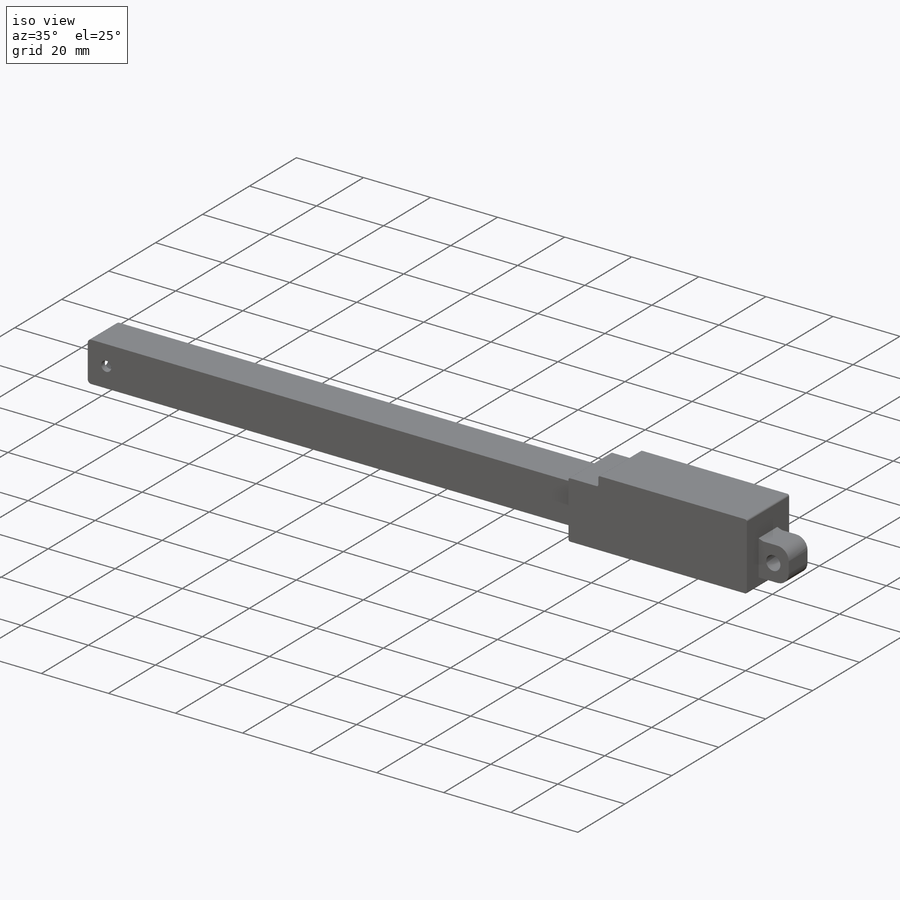
[diagram: iso view]
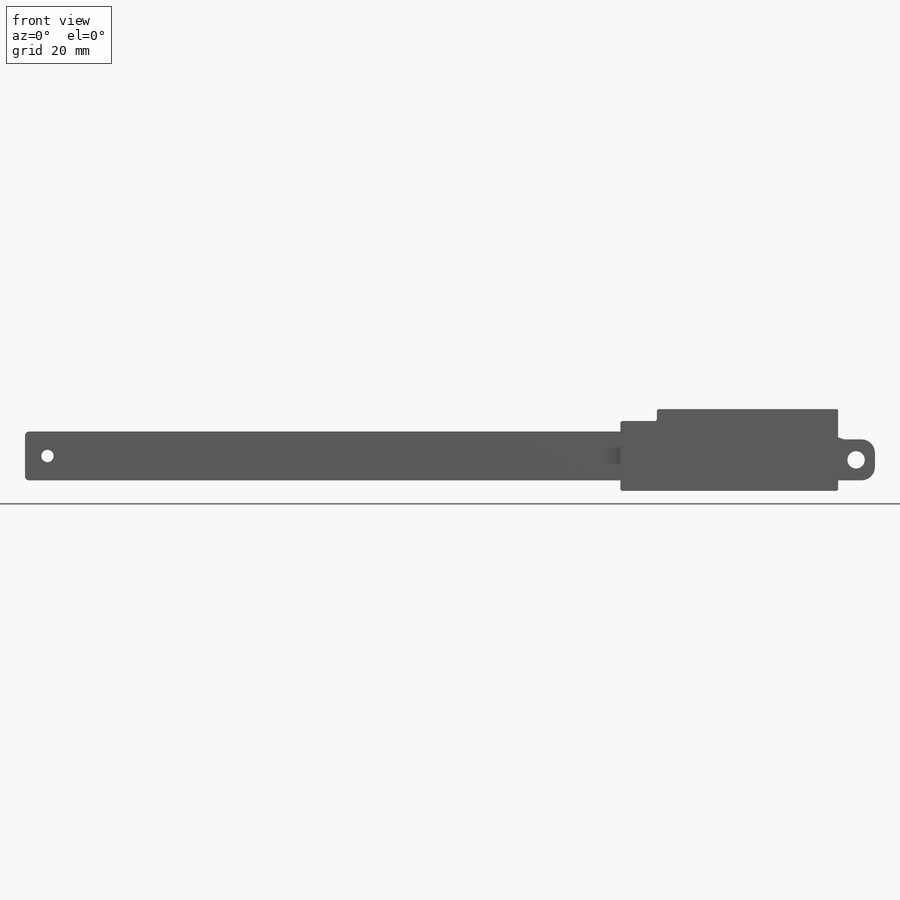
[diagram: front view]
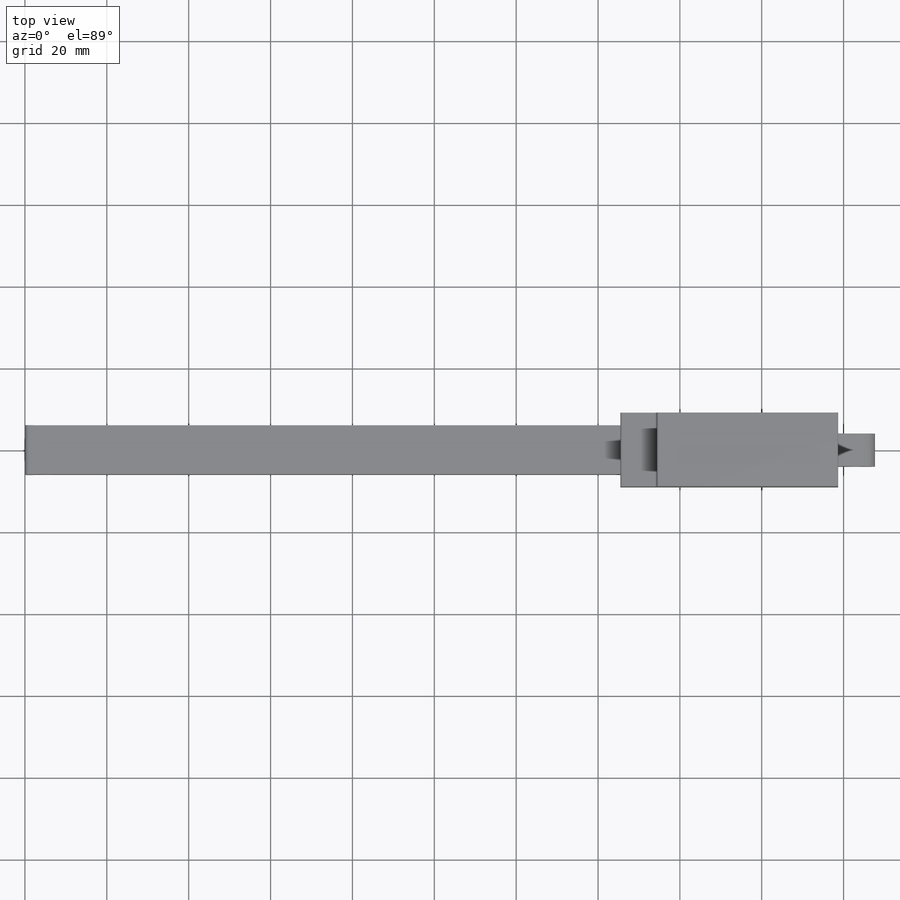
[diagram: top view]
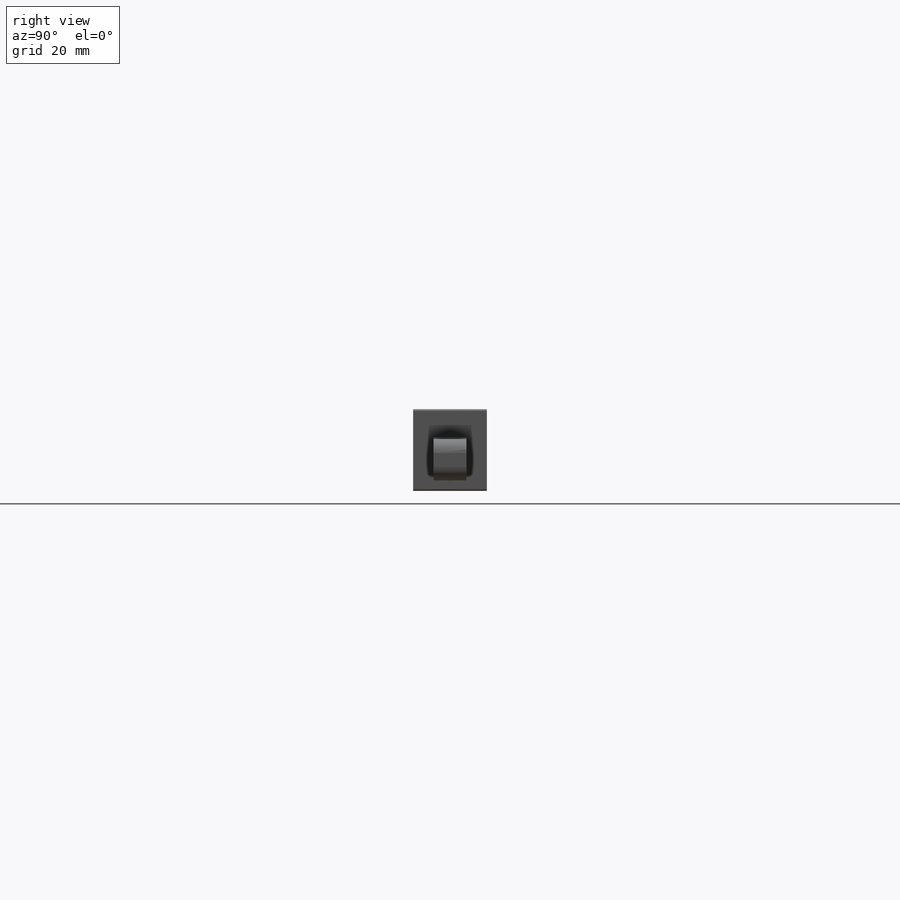
[diagram: right view]
SOLIDWORKS PART (.sldprt)
format: sldprt  version: not decoded by parser v0  size: 297,984 bytes
history: native  units: mm
features: sketch x6, extrude x3, cut_extrude x3, material x1 (+12 scaffold rows collapsed)
feature tree (25):
  scaffold x12  (default folders/planes/origin — collapsed)
  material  "Material <not specified>"
  sketch  "Sketch2"  dims[c1.D3=1.0mm c1.D8=0.5mm c1.D12=4.25mm c1.D13=2.0mm c1.D14=3.0mm c1.D9=4.3075mm c1.D1=145.4775mm c1.D2=11.945mm c2.D3=12.0mm c2.D4=53.0mm c2.D5=17.08mm c2.D6=20.0mm c2.D7=8.0mm c2.D9=9.0mm c2.D10=10.0425mm c2.D11=4.5mm c2.D15=2.0mm c2.D16=1.0mm c2.D17=0.5mm c3.D9=9.0mm c3.D4=53.2mm c4.D9=~4.42875mm c4.D11=9.0mm c4.D7=44.3mm c5.D9=4.25mm c5.D18=2.625mm c6.D9=2.5mm c6.D18=4.375mm]
  extrude  "Boss-Extrude1"  Depth=18mm
  extrude  "Boss-Extrude2"  [1 undecoded]
  sketch  "Sketch2<3>"  dims[D1=11.95mm]
  extrude  "Boss-Extrude3"  [1 undecoded]
  sketch  "Sketch2<4>"  dims[D1=12.0mm]
  sketch  "Sketch7"  dims[D1=8.9mm]
  cut_extrude  "Cut-Extrude4"  Depth=138mm
  sketch  "Sketch8"
  cut_extrude  "Cut-Extrude6"  Depth=10mm
  sketch  "Sketch10"
  cut_extrude  "Cut-Extrude7"  Depth=10mm
decode coverage: 8 of 12 modeling features carry decoded parameters
note: ~ marks probable driven/reference dimensions
note: 2 parameter values undecoded
note: suppression state not decoded; provenance and decode notes live in map.json
